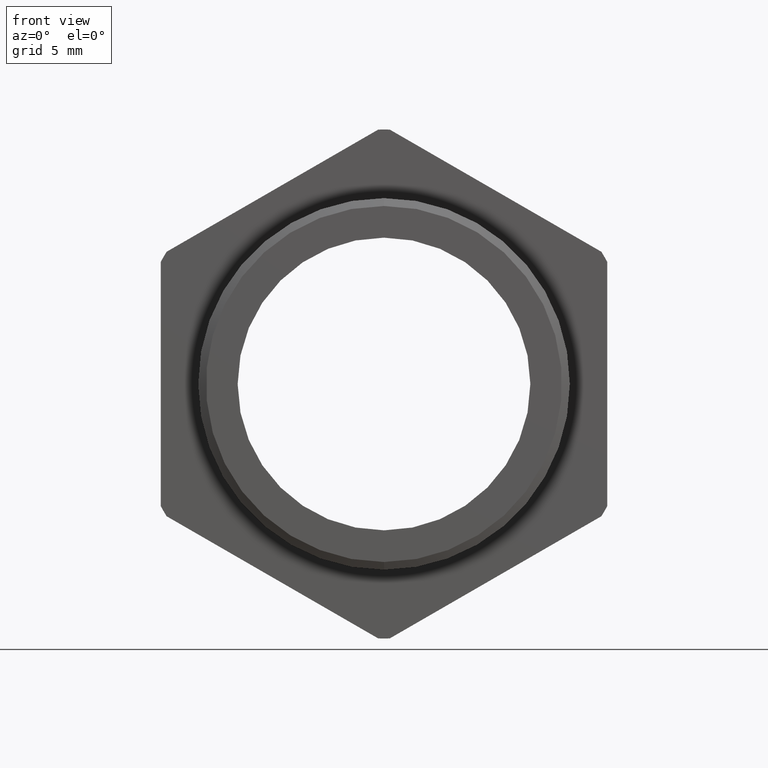
[diagram: clean part render]
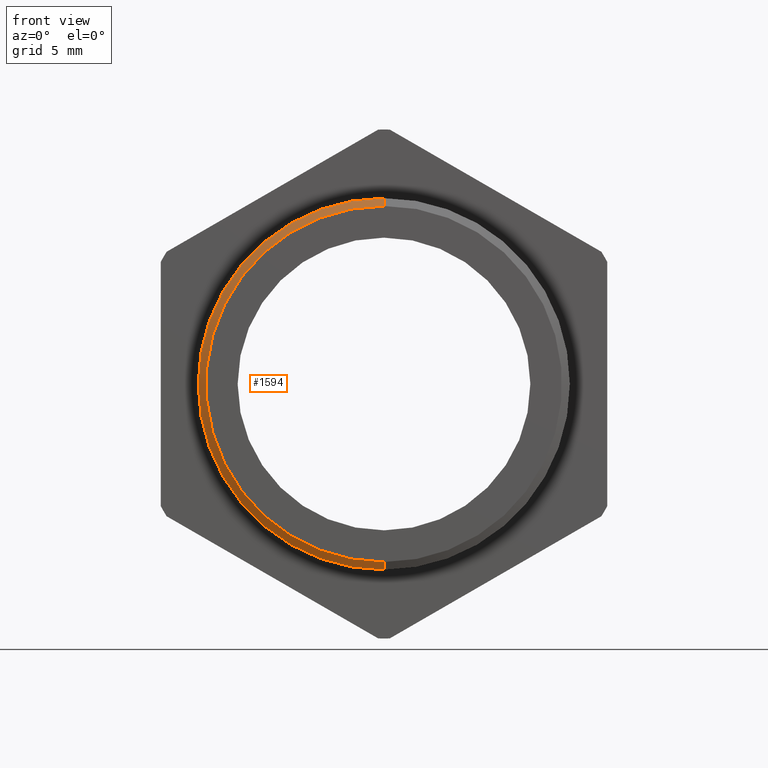
[diagram: same view with one face highlighted and labeled with its STEP entity id]
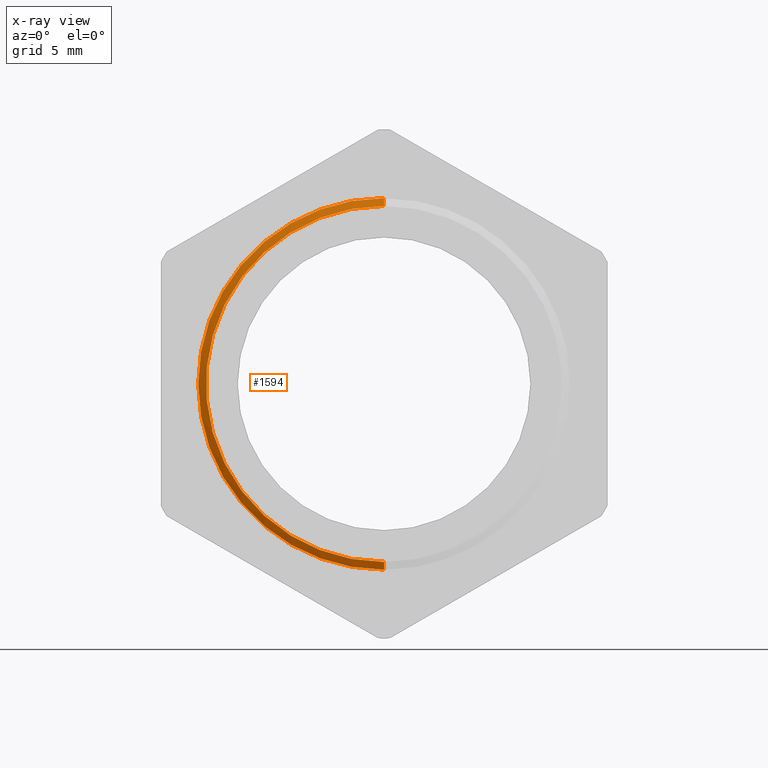
[diagram: x-ray of the same camera — body ghosted, the highlighted face saturated]
A machine part, front view. The second image highlights one B-rep face of the part: STEP entity #1594.
The next image is the same camera in x-ray: the body ghosted, the highlighted face saturated — about 0% of this face is hidden behind the body in this view.
In plain terms, the highlighted conical surface has half-angle 60 deg.
Its self-contained STEP definition (entity closure, byte-faithful):
#1346 = EDGE_CURVE ( 'NONE', #2039, #2038, #4505, .T. ) ;
#1594 = ADVANCED_FACE ( 'NONE', ( #4911 ), #4910, .T. ) ;
#1595 = EDGE_LOOP ( 'NONE', ( #1596, #1597, #1598, #1599 ) ) ;
#1596 = ORIENTED_EDGE ( 'NONE', *, *, #2093, .F. ) ;
#1597 = ORIENTED_EDGE ( 'NONE', *, *, #1346, .T. ) ;
#1598 = ORIENTED_EDGE ( 'NONE', *, *, #2098, .T. ) ;
#1599 = ORIENTED_EDGE ( 'NONE', *, *, #1616, .F. ) ;
#1616 = EDGE_CURVE ( 'NONE', #2041, #2096, #4954, .T. ) ;
#2038 = VERTEX_POINT ( 'NONE', #5760 ) ;
#2039 = VERTEX_POINT ( 'NONE', #5759 ) ;
#2041 = VERTEX_POINT ( 'NONE', #5758 ) ;
#2093 = EDGE_CURVE ( 'NONE', #2039, #2041, #5855, .T. ) ;
#2096 = VERTEX_POINT ( 'NONE', #5846 ) ;
#2098 = EDGE_CURVE ( 'NONE', #2038, #2096, #5845, .T. ) ;
#4501 = DIRECTION ( 'NONE',  ( 0.0000000000000000000, 0.0000000000000000000, 1.000000000000000000 ) ) ;
#4502 = DIRECTION ( 'NONE',  ( -0.0000000000000000000, 1.000000000000000000, -0.0000000000000000000 ) ) ;
#4503 = CARTESIAN_POINT ( 'NONE',  ( 0.0000000000000000000, -0.08219746364411292800, 0.0000000000000000000 ) ) ;
#4504 = AXIS2_PLACEMENT_3D ( 'NONE', #4503, #4502, #4501 ) ;
#4505 = CIRCLE ( 'NONE', #4504, 0.3150000000000000000 ) ;
#4905 = DIRECTION ( 'NONE',  ( 0.0000000000000000000, 0.0000000000000000000, 1.000000000000000000 ) ) ;
#4906 = DIRECTION ( 'NONE',  ( -0.0000000000000000000, 1.000000000000000000, -0.0000000000000000000 ) ) ;
#4907 = CARTESIAN_POINT ( 'NONE',  ( 0.0000000000000000000, -0.07424510941705199400, 0.0000000000000000000 ) ) ;
#4908 = AXIS2_PLACEMENT_3D ( 'NONE', #4907, #4906, #4905 ) ;
#4910 = CONICAL_SURFACE ( 'NONE', #4908, 0.3287738815610546400, 1.047197551196596700 ) ;
#4911 = FACE_OUTER_BOUND ( 'NONE', #1595, .T. ) ;
#4945 = DIRECTION ( 'NONE',  ( 0.0000000000000000000, 0.0000000000000000000, 1.000000000000000000 ) ) ;
#4946 = DIRECTION ( 'NONE',  ( -0.0000000000000000000, 1.000000000000000000, -0.0000000000000000000 ) ) ;
#4947 = CARTESIAN_POINT ( 'NONE',  ( 0.0000000000000000000, -0.07424510941705199400, 0.0000000000000000000 ) ) ;
#4948 = AXIS2_PLACEMENT_3D ( 'NONE', #4947, #4946, #4945 ) ;
#4954 = CIRCLE ( 'NONE', #4948, 0.3287738815610546400 ) ;
#5758 = CARTESIAN_POINT ( 'NONE',  ( 0.0000000000000000000, -0.07424510941705199400, -0.3287738815610546400 ) ) ;
#5759 = CARTESIAN_POINT ( 'NONE',  ( 0.0000000000000000000, -0.08219746364411292800, -0.3150000000000000000 ) ) ;
#5760 = CARTESIAN_POINT ( 'NONE',  ( 3.857637417314162700E-017, -0.08219746364411292800, 0.3150000000000000000 ) ) ;
#5842 = DIRECTION ( 'NONE',  ( 0.0000000000000000000, 0.5000000000000008900, 0.8660254037844380400 ) ) ;
#5843 = VECTOR ( 'NONE', #5842, 39.37007874015748100 ) ;
#5844 = CARTESIAN_POINT ( 'NONE',  ( 0.0000000000000000000, -0.07424510941705199400, 0.3287738815610546400 ) ) ;
#5845 = LINE ( 'NONE', #5844, #5843 ) ;
#5846 = CARTESIAN_POINT ( 'NONE',  ( 4.026318816969966200E-017, -0.07424510941705199400, 0.3287738815610546400 ) ) ;
#5852 = DIRECTION ( 'NONE',  ( 1.060575238724906300E-016, 0.5000000000000008900, -0.8660254037844380400 ) ) ;
#5853 = VECTOR ( 'NONE', #5852, 39.37007874015748100 ) ;
#5854 = CARTESIAN_POINT ( 'NONE',  ( 4.026318816969965600E-017, -0.07424510941705199400, -0.3287738815610546400 ) ) ;
#5855 = LINE ( 'NONE', #5854, #5853 ) ;